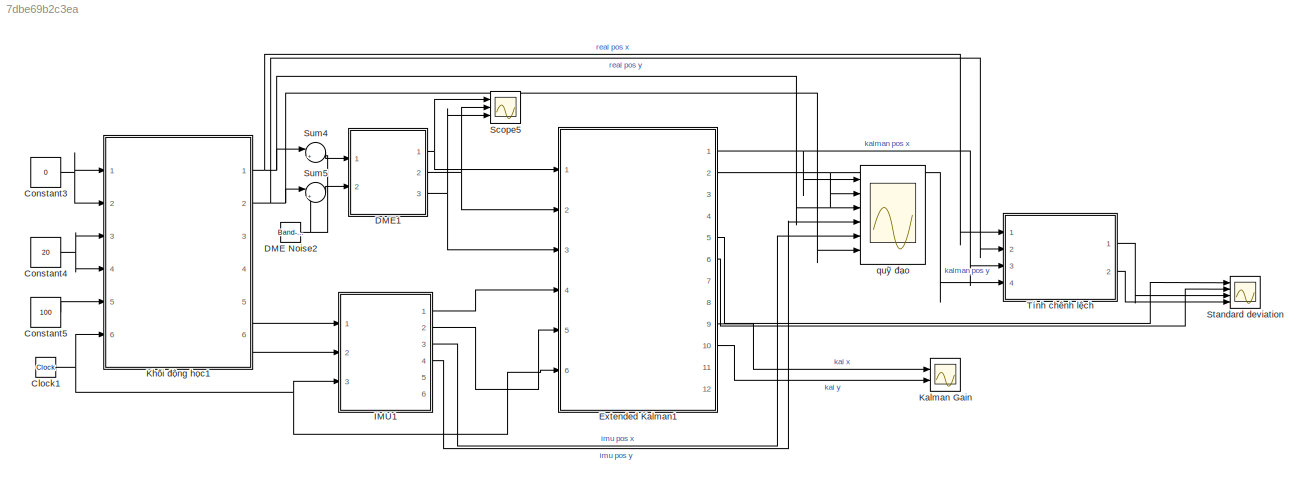
MODEL slx_7dbe69b2c3ea
KIND model
CONFIG AbsTol = auto
CONFIG EnableMultiTasking = off
CONFIG FixedStep = auto
CONFIG MaxStep = 0.01
CONFIG MinStep = 0.01
CONFIG RelTol = 1e-3
CONFIG SampleTimeConstraint = Unconstrained
CONFIG Solver = VariableStepAuto
CONFIG SolverName = VariableStepAuto
CONFIG StartTime = 0.0
CONFIG StopTime = 100
WORKSPACE source: mxarray member
WORKSPACE PnFrequencyOffset_26 = [30000 100000 1000000 3000000 10000000]
WORKSPACE uniqueString_26 = '91_3376'
BLOCK [Clock] Clock1
BLOCK [Constant] Constant3
  Value = 0
BLOCK [Constant] Constant4
  Value = 20
BLOCK [Constant] Constant5
  Value = 100
BLOCK [Reference] DME Noise2  REF=simulink/Sources/Band-Limited
White Noise
  Ports = [0, 1]
  SourceBlock = simulink/Sources/Band-Limited\nWhite Noise
  SourceType = Band-Limited White Noise.
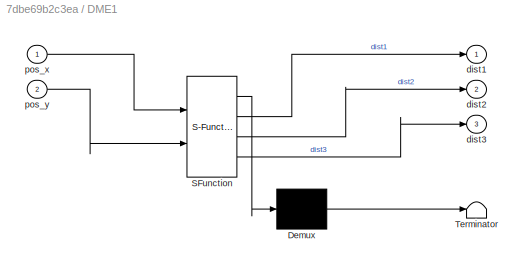
BLOCK [SubSystem] DME1
  ErrorFcn = Stateflow.Translate.translate
  PermitHierarchicalResolution = ExplicitOnly
  Ports = [2, 3]
  SFBlockType = MATLAB Function
  TreatAsAtomicUnit = on
BLOCK [Demux] DME1/ Demux 
  Outputs = 1
  Ports = [1, 1]
BLOCK [S-Function] DME1/ SFunction 
  EnableBusSupport = on
  FunctionName = sf_sfun
  PortCounts = [2 4]
  Ports = [2, 4]
  SFcnIsStateOwnerBlock = off
  SFunctionDeploymentMode = off
  Tag = Stateflow S-Function 5
BLOCK [Terminator] DME1/ Terminator 
BLOCK [Outport] DME1/dist1
BLOCK [Outport] DME1/dist2
  Port = 2
BLOCK [Outport] DME1/dist3
  Port = 3
BLOCK [Inport] DME1/pos_x
BLOCK [Inport] DME1/pos_y
  Port = 2
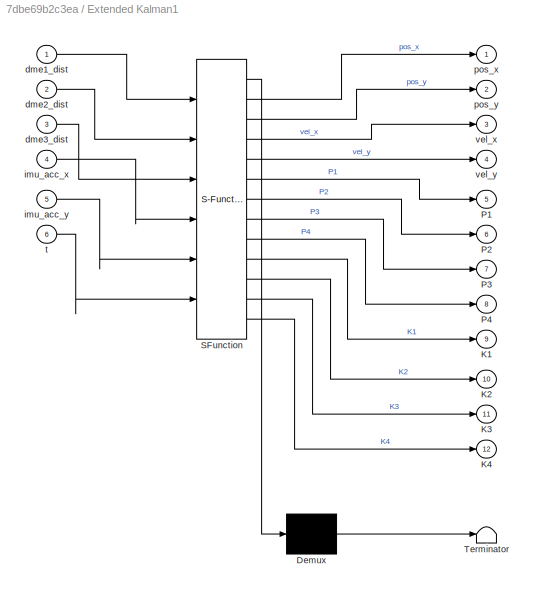
BLOCK [SubSystem] Extended Kalman1
  ErrorFcn = Stateflow.Translate.translate
  PermitHierarchicalResolution = ExplicitOnly
  Ports = [6, 12]
  SFBlockType = MATLAB Function
  TreatAsAtomicUnit = on
BLOCK [Demux] Extended Kalman1/ Demux 
  Outputs = 1
  Ports = [1, 1]
BLOCK [S-Function] Extended Kalman1/ SFunction 
  EnableBusSupport = on
  FunctionName = sf_sfun
  PortCounts = [6 13]
  Ports = [6, 13]
  SFcnIsStateOwnerBlock = off
  SFunctionDeploymentMode = off
  Tag = Stateflow S-Function 6
BLOCK [Terminator] Extended Kalman1/ Terminator 
BLOCK [Outport] Extended Kalman1/K1
  Port = 9
BLOCK [Outport] Extended Kalman1/K2
  Port = 10
BLOCK [Outport] Extended Kalman1/K3
  Port = 11
BLOCK [Outport] Extended Kalman1/K4
  Port = 12
BLOCK [Outport] Extended Kalman1/P1
  Port = 5
BLOCK [Outport] Extended Kalman1/P2
  Port = 6
BLOCK [Outport] Extended Kalman1/P3
  Port = 7
BLOCK [Outport] Extended Kalman1/P4
  Port = 8
BLOCK [Inport] Extended Kalman1/dme1_dist
BLOCK [Inport] Extended Kalman1/dme2_dist
  Port = 2
BLOCK [Inport] Extended Kalman1/dme3_dist
  Port = 3
BLOCK [Inport] Extended Kalman1/imu_acc_x
  Port = 4
BLOCK [Inport] Extended Kalman1/imu_acc_y
  Port = 5
BLOCK [Outport] Extended Kalman1/pos_x
BLOCK [Outport] Extended Kalman1/pos_y
  Port = 2
BLOCK [Inport] Extended Kalman1/t
  Port = 6
BLOCK [Outport] Extended Kalman1/vel_x
  Port = 3
BLOCK [Outport] Extended Kalman1/vel_y
  Port = 4
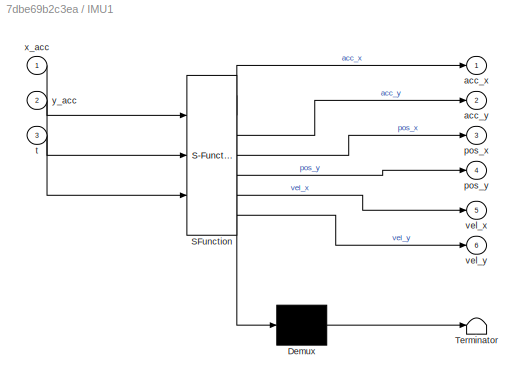
BLOCK [SubSystem] IMU1
  ErrorFcn = Stateflow.Translate.translate
  PermitHierarchicalResolution = ExplicitOnly
  Ports = [3, 6]
  SFBlockType = MATLAB Function
  TreatAsAtomicUnit = on
BLOCK [Demux] IMU1/ Demux 
  Outputs = 1
  Ports = [1, 1]
BLOCK [S-Function] IMU1/ SFunction 
  EnableBusSupport = on
  FunctionName = sf_sfun
  PortCounts = [3 7]
  Ports = [3, 7]
  SFcnIsStateOwnerBlock = off
  SFunctionDeploymentMode = off
  Tag = Stateflow S-Function 7
BLOCK [Terminator] IMU1/ Terminator 
BLOCK [Outport] IMU1/acc_x
BLOCK [Outport] IMU1/acc_y
  Port = 2
BLOCK [Outport] IMU1/pos_x
  Port = 3
BLOCK [Outport] IMU1/pos_y
  Port = 4
BLOCK [Inport] IMU1/t
  Port = 3
BLOCK [Outport] IMU1/vel_x
  Port = 5
BLOCK [Outport] IMU1/vel_y
  Port = 6
BLOCK [Inport] IMU1/x_acc
BLOCK [Inport] IMU1/y_acc
  Port = 2
BLOCK [Scope] Kalman Gain
  Floating = off
  NumInputPorts = 2
  Ports = [2]
  ScopeSpecificationString = Simulink.scopes.TimeScopeBlockCfg('CurrentConfiguration', extmgr.ConfigurationSet(extmgr.Configuration('Core','General UI',true,'FigureColor',[1 1 1]),extmgr.Configuration('Core','Source UI',true),extmgr.Configuration('Sources','WiredSimulink',true,'DataLoggingVariableName','kalmang','DataLogging',true,'DataLoggingSaveFormat','StructureWithTime'),extmgr.Configuration('Visuals','Time Domain',true,'...<+1935ch>
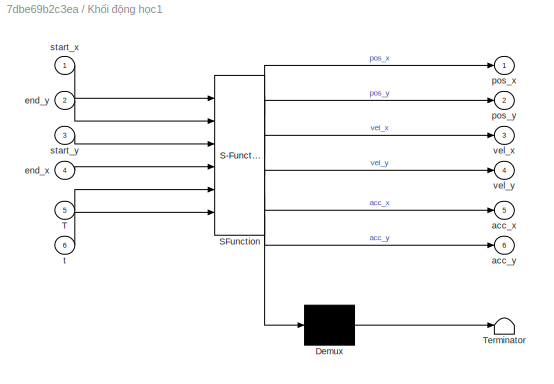
BLOCK [SubSystem] Khối động học1
  ErrorFcn = Stateflow.Translate.translate
  PermitHierarchicalResolution = ExplicitOnly
  Ports = [6, 6]
  SFBlockType = MATLAB Function
  TreatAsAtomicUnit = on
BLOCK [Demux] Khối động học1/ Demux 
  Outputs = 1
  Ports = [1, 1]
BLOCK [S-Function] Khối động học1/ SFunction 
  EnableBusSupport = on
  FunctionName = sf_sfun
  PortCounts = [6 7]
  Ports = [6, 7]
  SFcnIsStateOwnerBlock = off
  SFunctionDeploymentMode = off
  Tag = Stateflow S-Function 8
BLOCK [Terminator] Khối động học1/ Terminator 
BLOCK [Inport] Khối động học1/T
  Port = 5
BLOCK [Outport] Khối động học1/acc_x
  Port = 5
BLOCK [Outport] Khối động học1/acc_y
  Port = 6
BLOCK [Inport] Khối động học1/end_x
  Port = 4
BLOCK [Inport] Khối động học1/end_y
  Port = 2
BLOCK [Outport] Khối động học1/pos_x
BLOCK [Outport] Khối động học1/pos_y
  Port = 2
BLOCK [Inport] Khối động học1/start_x
BLOCK [Inport] Khối động học1/start_y
  Port = 3
BLOCK [Inport] Khối động học1/t
  Port = 6
BLOCK [Outport] Khối động học1/vel_x
  Port = 3
BLOCK [Outport] Khối động học1/vel_y
  Port = 4
BLOCK [Scope] Scope5
  Floating = off
  NumInputPorts = 3
  Ports = [3]
  ScopeSpecificationString = Simulink.scopes.TimeScopeBlockCfg('CurrentConfiguration', extmgr.ConfigurationSet(extmgr.Configuration('Core','General UI',true,'FigureColor',[1 1 1]),extmgr.Configuration('Core','Source UI',true),extmgr.Configuration('Sources','WiredSimulink',true,'DataLoggingVariableName','ScopeData4','DataLogging',true,'DataLoggingSaveFormat','StructureWithTime'),extmgr.Configuration('Visuals','Time Domain',tru...<+1841ch>
BLOCK [Scope] Standard deviation
  Floating = off
  NumInputPorts = 4
  Ports = [4]
  ScopeSpecificationString = Simulink.scopes.TimeScopeBlockCfg('CurrentConfiguration', extmgr.ConfigurationSet(extmgr.Configuration('Core','General UI',true,'FigureColor',[1 1 1]),extmgr.Configuration('Core','Source UI',true),extmgr.Configuration('Sources','WiredSimulink',true,'DataLogging',true,'DataLoggingVariableName','deviation','DataLoggingSaveFormat','StructureWithTime'),extmgr.Configuration('Visuals','Time Domain',true...<+2244ch>
BLOCK [Sum] Sum4
  Inputs = |++
  Ports = [2, 1]
BLOCK [Sum] Sum5
  Inputs = |++
  Ports = [2, 1]
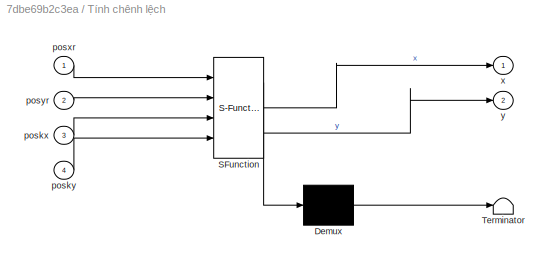
BLOCK [SubSystem] Tính chênh lệch
  ErrorFcn = Stateflow.Translate.translate
  PermitHierarchicalResolution = ExplicitOnly
  Ports = [4, 2]
  SFBlockType = MATLAB Function
  TreatAsAtomicUnit = on
BLOCK [Demux] Tính chênh lệch/ Demux 
  Outputs = 1
  Ports = [1, 1]
BLOCK [S-Function] Tính chênh lệch/ SFunction 
  EnableBusSupport = on
  FunctionName = sf_sfun
  PortCounts = [4 3]
  Ports = [4, 3]
  SFcnIsStateOwnerBlock = off
  SFunctionDeploymentMode = off
  Tag = Stateflow S-Function 2
BLOCK [Terminator] Tính chênh lệch/ Terminator 
BLOCK [Inport] Tính chênh lệch/poskx
  Port = 3
BLOCK [Inport] Tính chênh lệch/posky
  Port = 4
BLOCK [Inport] Tính chênh lệch/posxr
BLOCK [Inport] Tính chênh lệch/posyr
  Port = 2
BLOCK [Outport] Tính chênh lệch/x
BLOCK [Outport] Tính chênh lệch/y
  Port = 2
BLOCK [Scope] quỹ đạo
  Floating = off
  NumInputPorts = 6
  Ports = [6]
  ScopeSpecificationString = Simulink.scopes.TimeScopeBlockCfg('CurrentConfiguration', extmgr.ConfigurationSet(extmgr.Configuration('Core','General UI',true,'FigureColor',[1 1 1]),extmgr.Configuration('Core','Source UI',true),extmgr.Configuration('Sources','WiredSimulink',true,'DataLoggingVariableName','ScopeData5','DataLogging',true,'DataLoggingSaveFormat','StructureWithTime'),extmgr.Configuration('Visuals','Time Domain',tru...<+2220ch>
NET Clock1:1 -> Extended Kalman1:6, IMU1:3, Khối động học1:6
NET Constant3:1 -> Khối động học1:1, Khối động học1:2
NET Constant4:1 -> Khối động học1:3, Khối động học1:4
LINE Constant5:1 -> Khối động học1:5
NET DME Noise2:1 -> Sum4:2, Sum5:2
NET DME1:1 -> Extended Kalman1:1, Scope5:1
NET DME1:2 -> Extended Kalman1:2, Scope5:2
NET DME1:3 -> Extended Kalman1:3, Scope5:3
NET Extended Kalman1:1 -> Tính chênh lệch:3, quỹ đạo:1
LINE Extended Kalman1:10 -> Kalman Gain:2
NET Extended Kalman1:2 -> Tính chênh lệch:4, quỹ đạo:2
LINE Extended Kalman1:5 -> Standard deviation:1
LINE Extended Kalman1:6 -> Standard deviation:2
LINE Extended Kalman1:9 -> Kalman Gain:1
LINE IMU1:1 -> Extended Kalman1:4
LINE IMU1:2 -> Extended Kalman1:5
LINE IMU1:3 -> quỹ đạo:5
LINE IMU1:4 -> quỹ đạo:4
NET Khối động học1:1 -> Sum4:1, Tính chênh lệch:1, quỹ đạo:3
NET Khối động học1:2 -> Sum5:1, Tính chênh lệch:2, quỹ đạo:6
LINE Khối động học1:5 -> IMU1:1
LINE Khối động học1:6 -> IMU1:2
LINE Sum4:1 -> DME1:1
LINE Sum5:1 -> DME1:2
LINE Tính chênh lệch:1 -> Standard deviation:3
LINE Tính chênh lệch:2 -> Standard deviation:4
note: NET lines group one-source signal fan-out (src -> all destinations, sorted); 1:1 wires keep LINE
CHART Tính chênh lệch states=1 transitions=1
  STATE_LABEL 'eML_blk_kernel()'
  STATE_LABEL 'SCRIPT:\nfunction [x,y] = fcn(posxr, posyr, poskx, posky)\nx = abs(posxr-poskx);\ny=abs(posyr-posky);\n'
CHART DME1 states=1 transitions=1
  STATE_LABEL 'eML_blk_kernel()'
  STATE_LABEL 'SCRIPT:\nfunction [dist1, dist2, dist3] = DME(pos_x, pos_y)\n    % Define DME station positions\n    dme1_x = 0; dme1_y = 22;     % Position of DME station 1\n    dme2_x = 16; dme2_y = 16;      % Position of DME station 2\n    dme3_x = 230; dme3_y = 100;     % Position of DME station 3\n    \n    % Define DME coverage radius\n    coverage_radius = 7;\n    % Calculate distances to each DME station\n    dx1 =...<+549ch>'
CHART Extended Kalman1 states=1 transitions=1
  STATE_LABEL 'eML_blk_kernel()'
  STATE_LABEL 'SCRIPT:\nfunction [pos_x, pos_y, vel_x, vel_y, P1, P2, P3, P4, K1, K2, K3, K4] = Kalman(dme1_dist, dme2_dist, dme3_dist, imu_acc_x, imu_acc_y, t)\n\n    persistent x_est P_est prev_t\n    if isempty(x_est)\n        % Initialize state vector [pos_x; pos_y; vel_x; vel_y]\n        x_est = [0; 20; 0; 0];  % Initial position \n        P_est = eye(4) * 1e-30;      % Initial state covariance\n        prev_t = 0;...<+3054ch>'
CHART IMU1 states=1 transitions=1
  STATE_LABEL 'eML_blk_kernel()'
  STATE_LABEL 'SCRIPT:\nfunction [ acc_x, acc_y,pos_x, pos_y, vel_x, vel_y] = IMU(x_acc, y_acc, t)\n    g = 9.81;  % gravity constant [m/s^2]\n    persistent prev_vel_x prev_vel_y prev_pos_x prev_pos_y prev_t\n   \n    if isempty(prev_vel_x)\n        prev_vel_x = 0;\n        prev_vel_y = 0;\n        prev_pos_x = 0;  % Set to match trajectory starting position\n        prev_pos_y = 20;  % Set to match trajectory starting ...<+1643ch>'
CHART Khối động học1 states=1 transitions=1
  STATE_LABEL 'eML_blk_kernel()'
  STATE_LABEL 'SCRIPT:\nfunction [pos_x, pos_y, vel_x, vel_y, acc_x, acc_y] = trajectory( start_x, end_y, start_y, end_x, T,t)\n    % Normalize time to [0,1]\n    t_norm = t/T;\n    if t_norm > 1\n        t_norm = 1;\n    end\n    \n% X-direction\na0 = 0; a1 = 0; a2 = 0; a3 = 10; a4 = -15; a5 = 6;\n% Y-direction\nb0 = 0; b1 = 0; b2 = 0; b3 = 9; b4 = -18; b5 = 10;\n\n    % Calculate normalized position \n    s = a0 + a1*t_norm...<+1042ch>'
CHART  states=0 transitions=0
CHART  states=0 transitions=0
CHART  states=0 transitions=0
CHART  states=0 transitions=0
CHART  states=0 transitions=0
